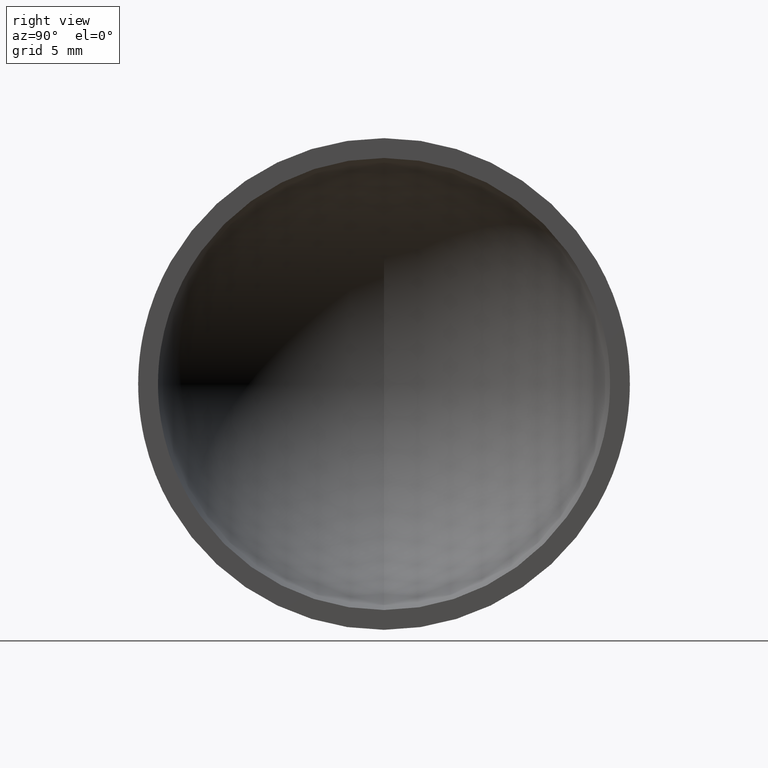
[diagram: clean part render]
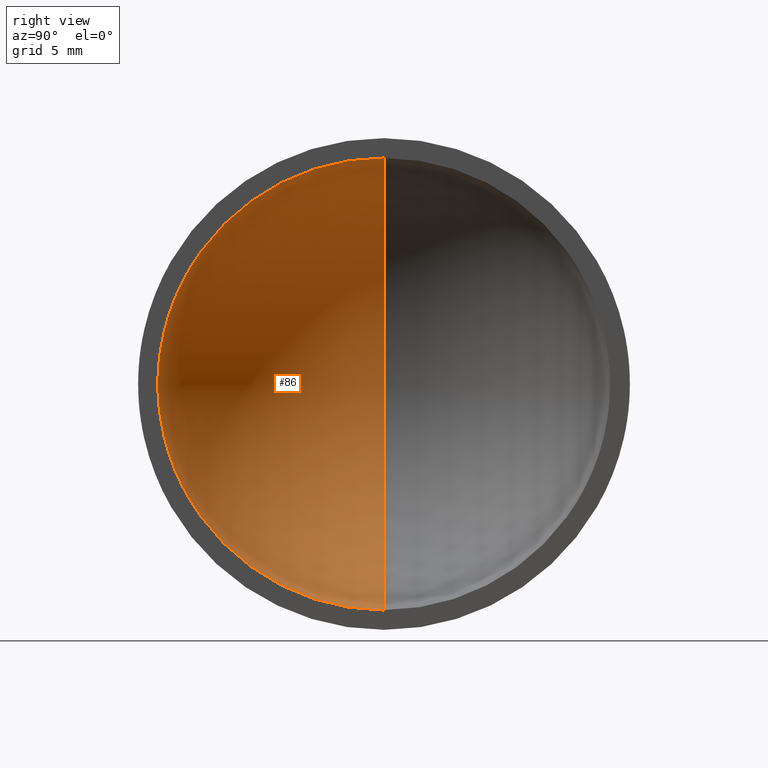
[diagram: same view with one face highlighted and labeled with its STEP entity id]
A machine part, right view. The second image highlights one B-rep face of the part: STEP entity #86.
In plain terms, the highlighted spherical surface has radius 11.5 mm.
Its self-contained STEP definition (entity closure, byte-faithful):
#14 = DIRECTION ( 'NONE',  ( 0.0000000000000000000, 0.0000000000000000000, -1.000000000000000000 ) ) ;
#22 = CIRCLE ( 'NONE', #147, 11.50000000000000000 ) ;
#30 = EDGE_CURVE ( 'NONE', #36, #156, #124, .T. ) ;
#34 = DIRECTION ( 'NONE',  ( 0.0000000000000000000, -1.000000000000000000, 0.0000000000000000000 ) ) ;
#36 = VERTEX_POINT ( 'NONE', #103 ) ;
#45 = EDGE_CURVE ( 'NONE', #171, #156, #22, .T. ) ;
#46 = DIRECTION ( 'NONE',  ( 0.0000000000000000000, -1.224646799147353200E-016, -1.000000000000000000 ) ) ;
#53 = AXIS2_PLACEMENT_3D ( 'NONE', #137, #34, #109 ) ;
#63 = ORIENTED_EDGE ( 'NONE', *, *, #94, .T. ) ;
#68 = CARTESIAN_POINT ( 'NONE',  ( -0.9999999999999967800, -1.403009164169531900E-015, -11.45643923738959900 ) ) ;
#71 = CARTESIAN_POINT ( 'NONE',  ( 0.0000000000000000000, 0.0000000000000000000, 0.0000000000000000000 ) ) ;
#74 = ORIENTED_EDGE ( 'NONE', *, *, #30, .T. ) ;
#77 = DIRECTION ( 'NONE',  ( 0.0000000000000000000, 1.000000000000000000, 0.0000000000000000000 ) ) ;
#79 = AXIS2_PLACEMENT_3D ( 'NONE', #89, #107, #14 ) ;
#85 = FACE_OUTER_BOUND ( 'NONE', #151, .T. ) ;
#86 = ADVANCED_FACE ( 'NONE', ( #85 ), #119, .F. ) ;
#89 = CARTESIAN_POINT ( 'NONE',  ( -0.9999999999999967800, 0.0000000000000000000, 0.0000000000000000000 ) ) ;
#94 = EDGE_CURVE ( 'NONE', #171, #36, #157, .T. ) ;
#103 = CARTESIAN_POINT ( 'NONE',  ( -0.9999999999999967800, 0.0000000000000000000, 11.45643923738959900 ) ) ;
#106 = DIRECTION ( 'NONE',  ( 0.0000000000000000000, -1.000000000000000000, 1.224646799147353200E-016 ) ) ;
#107 = DIRECTION ( 'NONE',  ( 1.000000000000000000, -0.0000000000000000000, -0.0000000000000000000 ) ) ;
#109 = DIRECTION ( 'NONE',  ( 0.0000000000000000000, 0.0000000000000000000, 1.000000000000000000 ) ) ;
#119 = SPHERICAL_SURFACE ( 'NONE', #53, 11.50000000000000000 ) ;
#122 = CARTESIAN_POINT ( 'NONE',  ( 0.0000000000000000000, 0.0000000000000000000, 0.0000000000000000000 ) ) ;
#124 = CIRCLE ( 'NONE', #79, 11.45643923738959900 ) ;
#133 = CARTESIAN_POINT ( 'NONE',  ( -11.50000000000000000, 0.0000000000000000000, 7.041719095097280900E-016 ) ) ;
#135 = DIRECTION ( 'NONE',  ( 0.0000000000000000000, 0.0000000000000000000, 1.000000000000000000 ) ) ;
#137 = CARTESIAN_POINT ( 'NONE',  ( 0.0000000000000000000, 0.0000000000000000000, 0.0000000000000000000 ) ) ;
#139 = AXIS2_PLACEMENT_3D ( 'NONE', #122, #77, #135 ) ;
#147 = AXIS2_PLACEMENT_3D ( 'NONE', #71, #106, #46 ) ;
#151 = EDGE_LOOP ( 'NONE', ( #164, #63, #74 ) ) ;
#156 = VERTEX_POINT ( 'NONE', #68 ) ;
#157 = CIRCLE ( 'NONE', #139, 11.50000000000000000 ) ;
#164 = ORIENTED_EDGE ( 'NONE', *, *, #45, .F. ) ;
#171 = VERTEX_POINT ( 'NONE', #133 ) ;